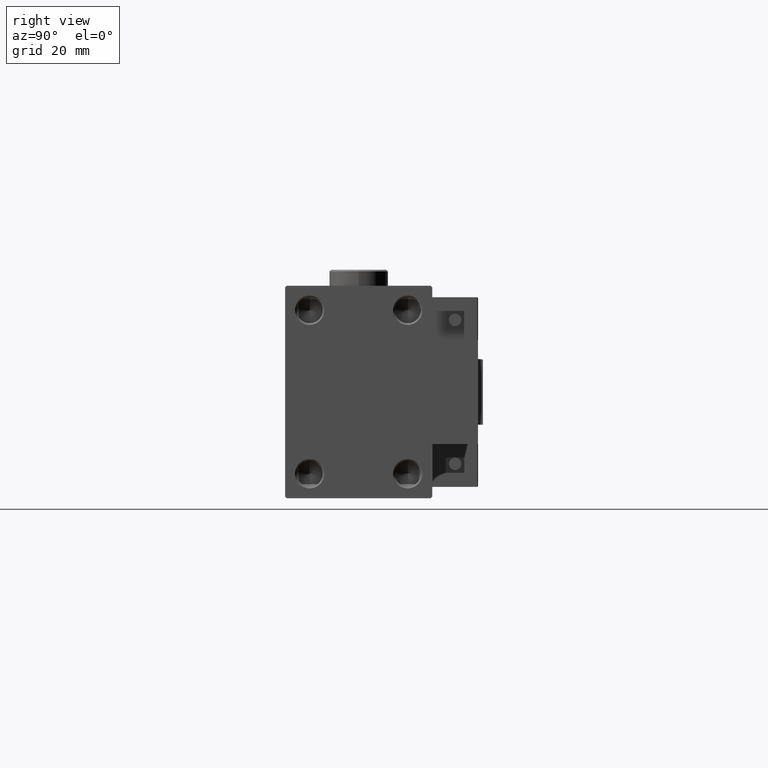
[diagram: clean part render]
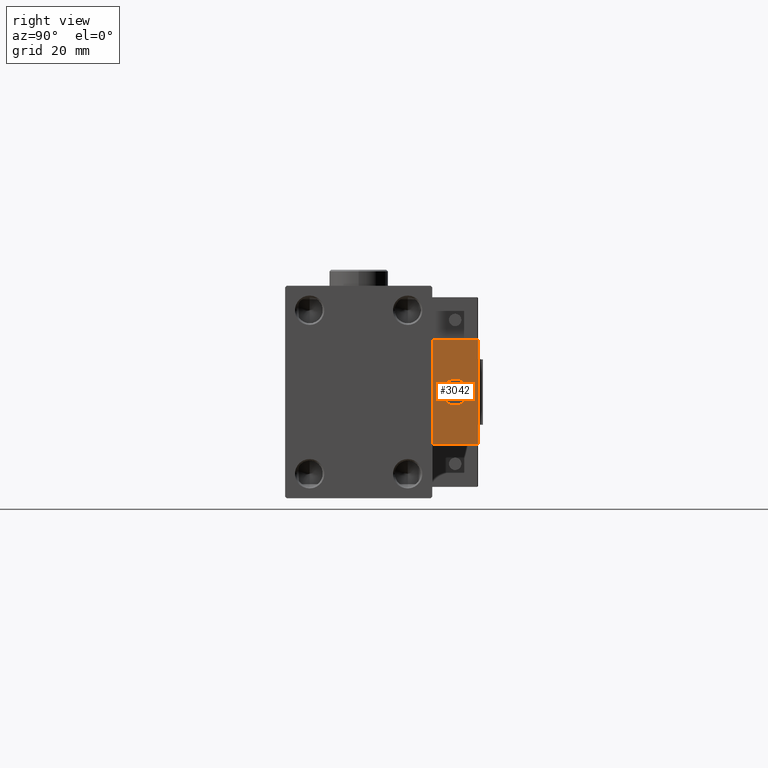
[diagram: same view with one face highlighted and labeled with its STEP entity id]
A machine part, right view. The second image highlights one B-rep face of the part: STEP entity #3042.
In plain terms, the highlighted planar face has unit normal (-1, 0, 0).
Its self-contained STEP definition (entity closure, byte-faithful):
#191 = DIRECTION ( 'NONE',  ( 0.000000000000000000, 0.000000000000000000, -1.000000000000000000 ) ) ;
#2720 = VECTOR ( 'NONE', #191, 1000.000000000000000 ) ;
#3042 = ADVANCED_FACE ( 'NONE', ( #43395, #44194 ), #15733, .F. ) ;
#6367 = CARTESIAN_POINT ( 'NONE',  ( 10.00000000000000000, -7.000000000000000000, -16.00000000000000711 ) ) ;
#7182 = DIRECTION ( 'NONE',  ( -1.000000000000000000, 0.000000000000000000, 0.000000000000000000 ) ) ;
#8959 = DIRECTION ( 'NONE',  ( 0.000000000000000000, -1.000000000000000000, 0.000000000000000000 ) ) ;
#9910 = CIRCLE ( 'NONE', #19124, 4.000000000000000000 ) ;
#9937 = EDGE_CURVE ( 'NONE', #22927, #40895, #44837, .T. ) ;
#10574 = CARTESIAN_POINT ( 'NONE',  ( 10.00000000000000000, 7.000000000000000000, 15.99999999999999289 ) ) ;
#12146 = CARTESIAN_POINT ( 'NONE',  ( 10.00000000000000000, -7.000000000000000000, 15.99999999999999289 ) ) ;
#12499 = EDGE_LOOP ( 'NONE', ( #37616, #26865 ) ) ;
#12940 = ORIENTED_EDGE ( 'NONE', *, *, #13475, .F. ) ;
#13475 = EDGE_CURVE ( 'NONE', #27561, #51401, #29159, .T. ) ;
#14376 = CARTESIAN_POINT ( 'NONE',  ( 10.00000000000000000, 0.000000000000000000, 0.000000000000000000 ) ) ;
#15426 = DIRECTION ( 'NONE',  ( 0.000000000000000000, 0.000000000000000000, 1.000000000000000000 ) ) ;
#15733 = PLANE ( 'NONE',  #49188 ) ;
#15927 = CARTESIAN_POINT ( 'NONE',  ( 10.00000000000000000, 4.898587196589412829E-16, -4.000000000000000000 ) ) ;
#16790 = LINE ( 'NONE', #32502, #52328 ) ;
#17567 = VERTEX_POINT ( 'NONE', #44622 ) ;
#18126 = CARTESIAN_POINT ( 'NONE',  ( 10.00000000000000000, 7.000000000000000000, -16.00000000000000711 ) ) ;
#19124 = AXIS2_PLACEMENT_3D ( 'NONE', #14376, #7182, #15426 ) ;
#22927 = VERTEX_POINT ( 'NONE', #38940 ) ;
#23326 = EDGE_CURVE ( 'NONE', #51401, #40895, #16790, .T. ) ;
#23396 = CARTESIAN_POINT ( 'NONE',  ( 10.00000000000000000, 0.000000000000000000, 0.000000000000000000 ) ) ;
#23500 = EDGE_CURVE ( 'NONE', #17567, #37879, #9910, .T. ) ;
#26865 = ORIENTED_EDGE ( 'NONE', *, *, #28249, .T. ) ;
#27561 = VERTEX_POINT ( 'NONE', #10574 ) ;
#28249 = EDGE_CURVE ( 'NONE', #37879, #17567, #28469, .T. ) ;
#28469 = CIRCLE ( 'NONE', #47139, 4.000000000000000000 ) ;
#28632 = DIRECTION ( 'NONE',  ( 0.000000000000000000, 0.000000000000000000, -1.000000000000000000 ) ) ;
#29159 = LINE ( 'NONE', #32623, #51993 ) ;
#31427 = CARTESIAN_POINT ( 'NONE',  ( 10.00000000000000000, 0.000000000000000000, 0.000000000000000000 ) ) ;
#31947 = DIRECTION ( 'NONE',  ( -1.000000000000000000, 0.000000000000000000, -0.000000000000000000 ) ) ;
#31970 = DIRECTION ( 'NONE',  ( 0.000000000000000000, -1.000000000000000000, 0.000000000000000000 ) ) ;
#32502 = CARTESIAN_POINT ( 'NONE',  ( 10.00000000000000000, 7.000000000000000000, -16.00000000000000711 ) ) ;
#32623 = CARTESIAN_POINT ( 'NONE',  ( 10.00000000000000000, 7.000000000000000000, 15.99999999999999289 ) ) ;
#34325 = ORIENTED_EDGE ( 'NONE', *, *, #23326, .F. ) ;
#35100 = DIRECTION ( 'NONE',  ( 0.000000000000000000, 0.000000000000000000, 1.000000000000000000 ) ) ;
#37390 = ORIENTED_EDGE ( 'NONE', *, *, #49024, .T. ) ;
#37616 = ORIENTED_EDGE ( 'NONE', *, *, #23500, .T. ) ;
#37879 = VERTEX_POINT ( 'NONE', #15927 ) ;
#38940 = CARTESIAN_POINT ( 'NONE',  ( 10.00000000000000000, -7.000000000000000000, 15.99999999999999289 ) ) ;
#40895 = VERTEX_POINT ( 'NONE', #6367 ) ;
#43395 = FACE_BOUND ( 'NONE', #12499, .T. ) ;
#44194 = FACE_OUTER_BOUND ( 'NONE', #44765, .T. ) ;
#44622 = CARTESIAN_POINT ( 'NONE',  ( 10.00000000000000000, 0.000000000000000000, 4.000000000000000000 ) ) ;
#44765 = EDGE_LOOP ( 'NONE', ( #51987, #34325, #12940, #37390 ) ) ;
#44837 = LINE ( 'NONE', #12146, #2720 ) ;
#45654 = CARTESIAN_POINT ( 'NONE',  ( 10.00000000000000000, 7.000000000000000000, 15.99999999999999289 ) ) ;
#46978 = VECTOR ( 'NONE', #8959, 1000.000000000000000 ) ;
#47139 = AXIS2_PLACEMENT_3D ( 'NONE', #23396, #51325, #35100 ) ;
#48181 = DIRECTION ( 'NONE',  ( -0.000000000000000000, 0.000000000000000000, 1.000000000000000000 ) ) ;
#49024 = EDGE_CURVE ( 'NONE', #27561, #22927, #49908, .T. ) ;
#49188 = AXIS2_PLACEMENT_3D ( 'NONE', #31427, #31947, #48181 ) ;
#49908 = LINE ( 'NONE', #45654, #46978 ) ;
#51325 = DIRECTION ( 'NONE',  ( -1.000000000000000000, 0.000000000000000000, 0.000000000000000000 ) ) ;
#51401 = VERTEX_POINT ( 'NONE', #18126 ) ;
#51987 = ORIENTED_EDGE ( 'NONE', *, *, #9937, .T. ) ;
#51993 = VECTOR ( 'NONE', #28632, 1000.000000000000000 ) ;
#52328 = VECTOR ( 'NONE', #31970, 1000.000000000000000 ) ;